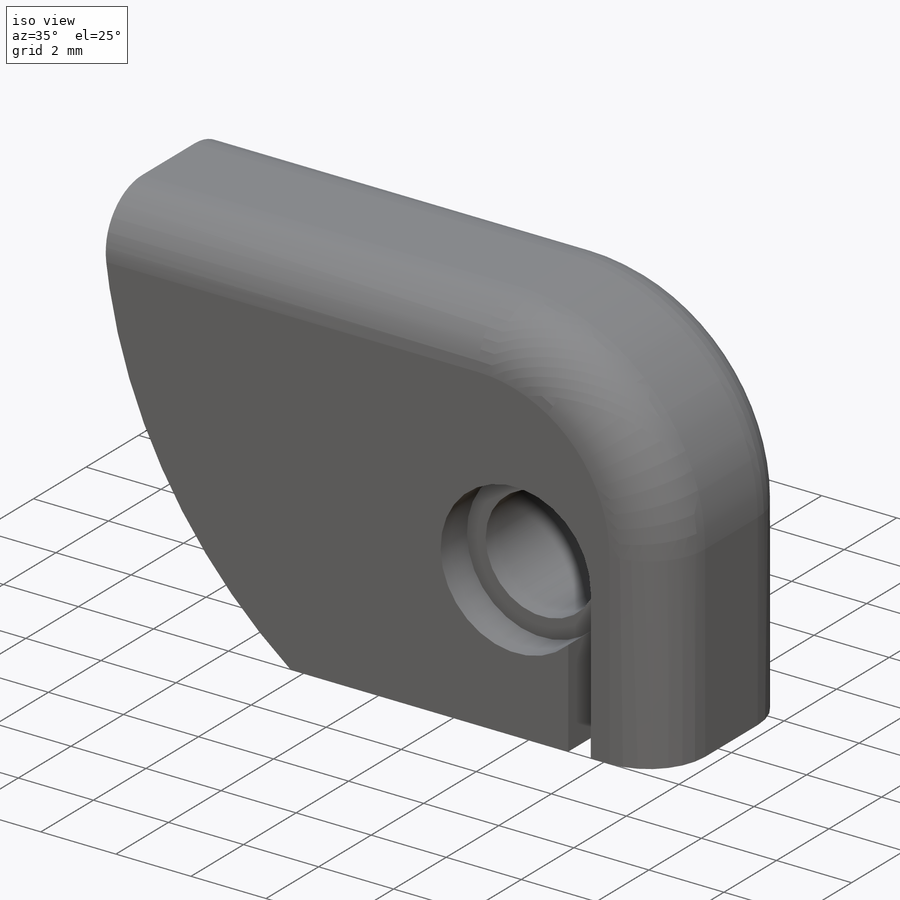
[diagram: iso view]
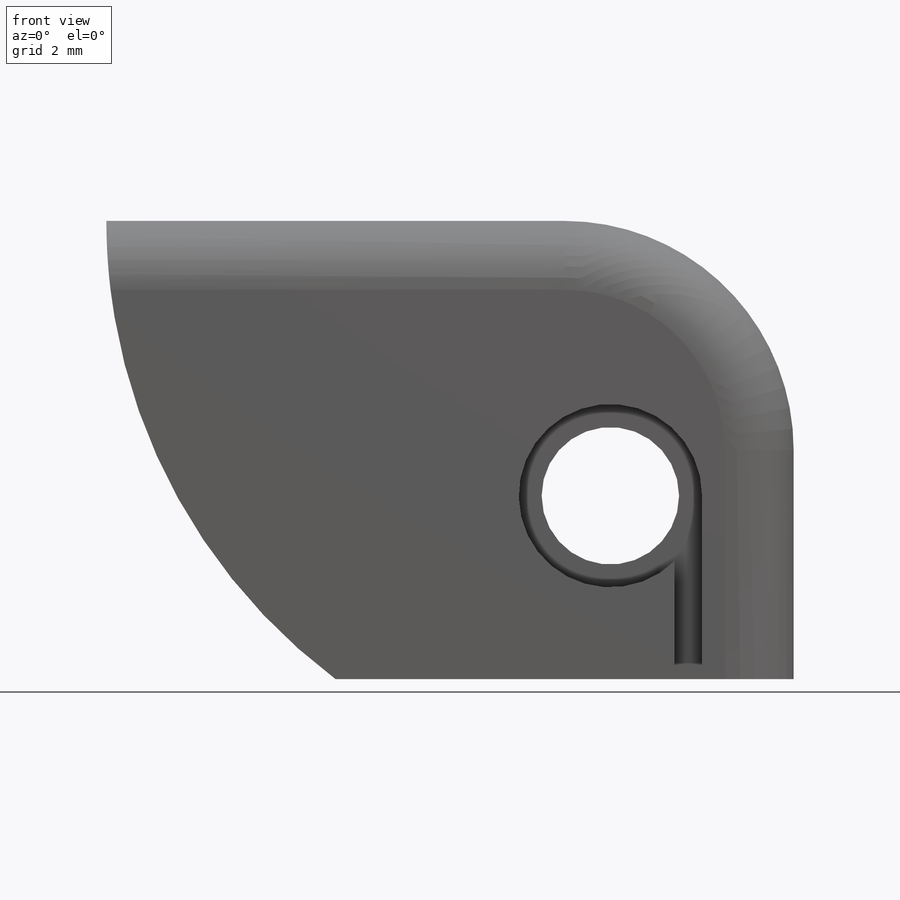
[diagram: front view]
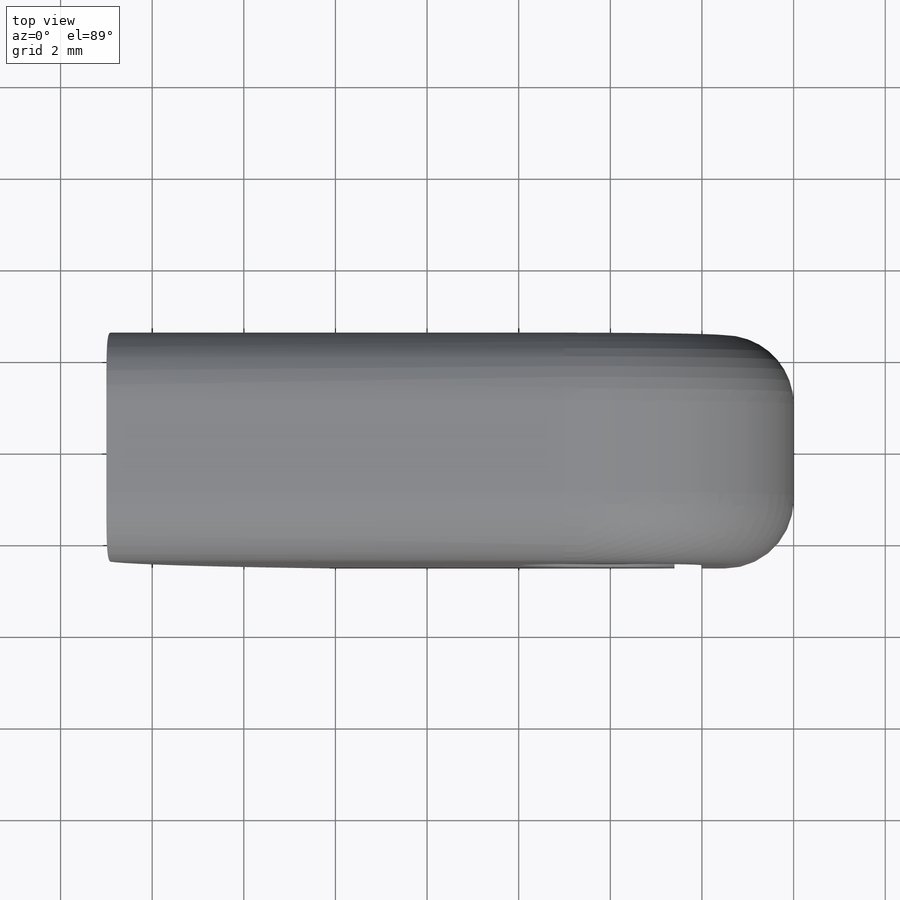
[diagram: top view]
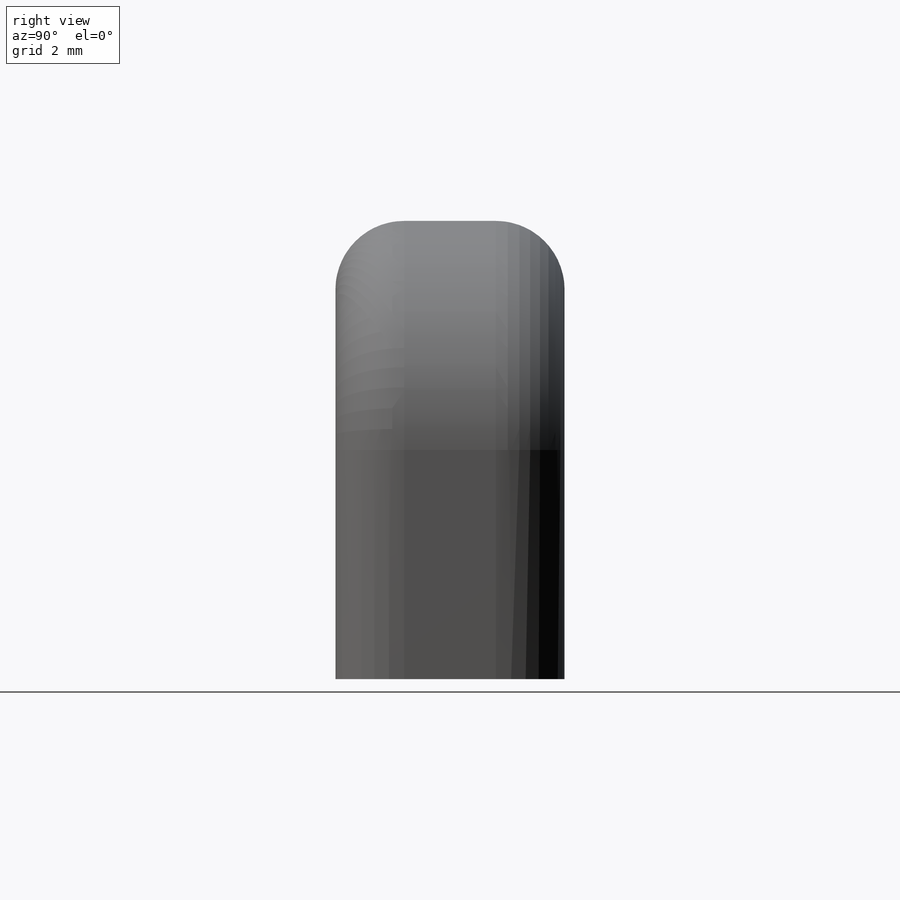
[diagram: right view]
SOLIDWORKS PART (.sldprt)
format: sldprt  version: not decoded by parser v0  size: 249,344 bytes
history: native  units: mm
features: sketch x4, cut_extrude x3, material x1, extrude x1, fillet x1 (+11 scaffold rows collapsed)
feature tree (21):
  scaffold x11  (default folders/planes/origin — collapsed)
  material  "ABS"
  sketch  "Sketch1"  dims[c1.D1=15.0mm c1.D2=15.0mm c2.D2=90.0deg c3.D2=10.0mm c3.D1=15.0mm c3.D3=10.0mm]
  extrude  "Extrude1"  Depth=5mm
  sketch  "Sketch2"  dims[D2=3.0mm D3=5.0mm D1=4.0mm]
  cut_extrude  "Extrude2"  [1 undecoded]
  sketch  "Sketch3"  dims[D2=4.0mm D1=0.6mm]
  cut_extrude  "Extrude3"  Depth=1mm
  cut_extrude  "Extrude4"  [1 undecoded]
  sketch  "Sketch3<3>"  dims[D1=1.0mm]
  fillet  "Fillet1"  Radius=1.5mm
decode coverage: 7 of 9 modeling features carry decoded parameters
note: 2 parameter values undecoded
note: suppression state not decoded; provenance and decode notes live in map.json
